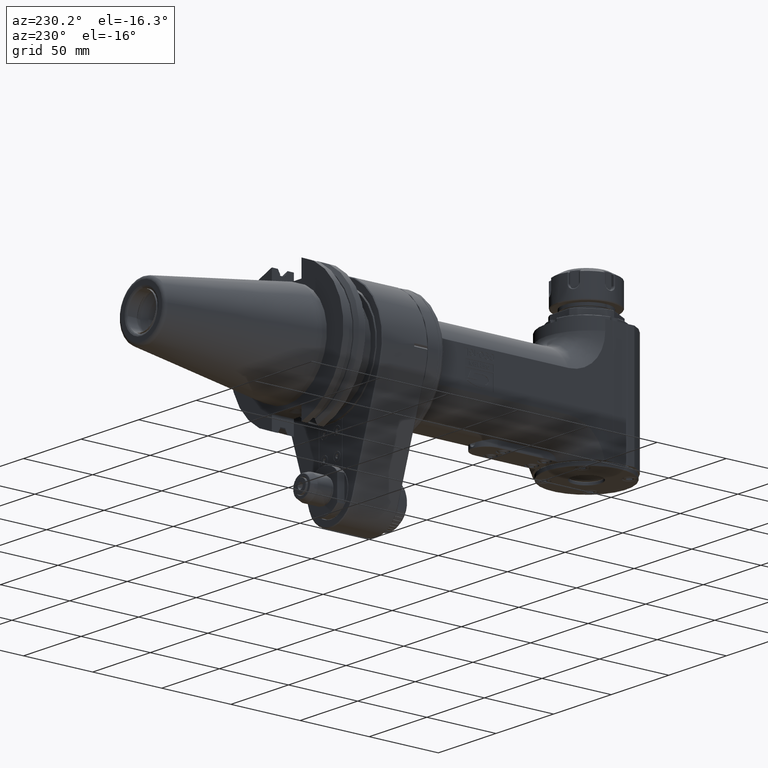
[diagram: clean part render]
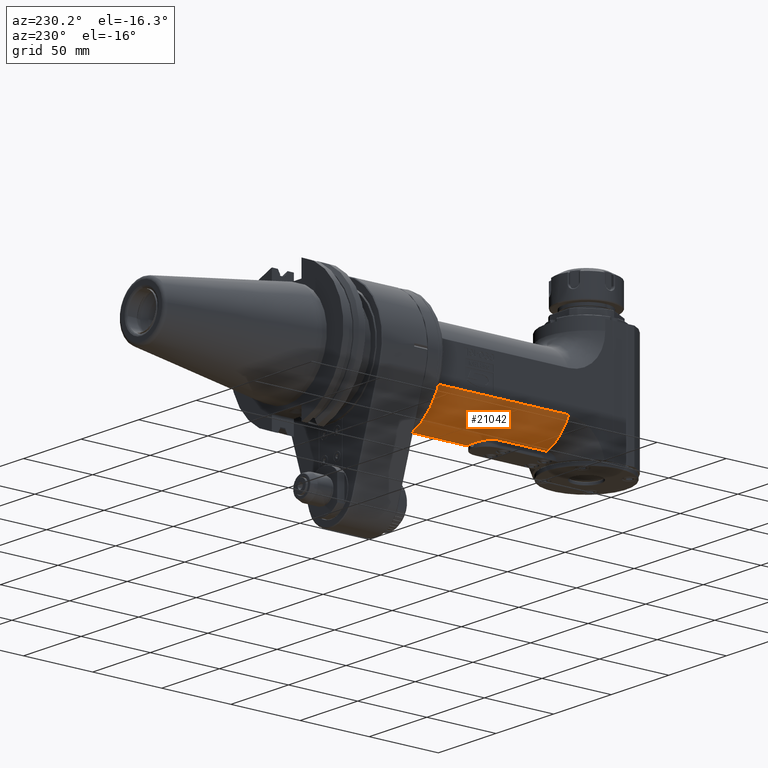
[diagram: same view with one face highlighted and labeled with its STEP entity id]
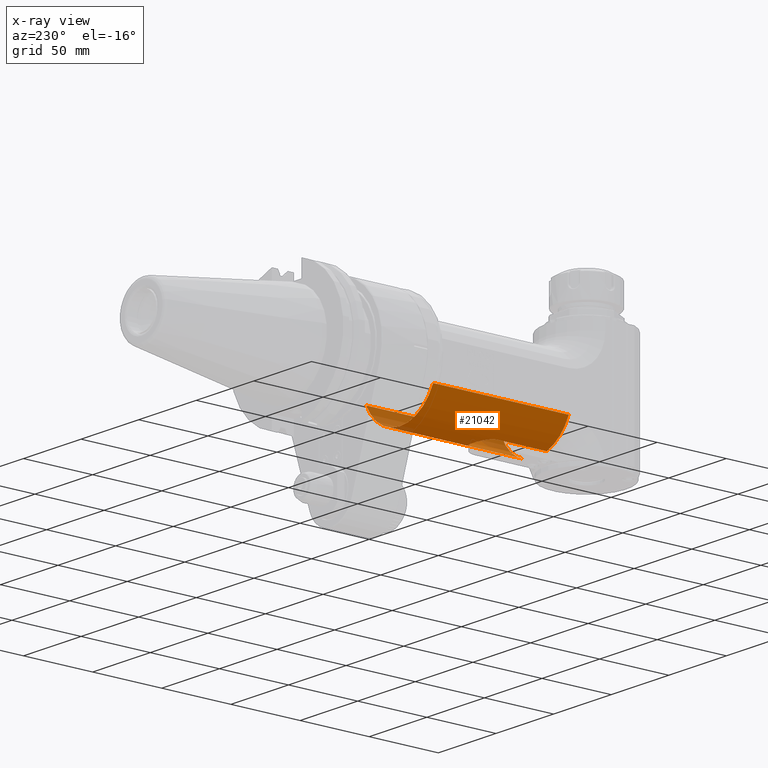
[diagram: x-ray of the same camera — body ghosted, the highlighted face saturated]
A machine part, auxiliary view. The second image highlights one B-rep face of the part: STEP entity #21042.
The next image is the same camera in x-ray: the body ghosted, the highlighted face saturated — about 11% of this face is hidden behind the body in this view.
In plain terms, the highlighted cylindrical surface (partial cylindrical patch) has radius 32 mm, axis along (0, -1, -0).
Its self-contained STEP definition (entity closure, byte-faithful):
#1238=B_SPLINE_CURVE_WITH_KNOTS('',3,(#30257,#30258,#30259,#30260,#30261,
#30262,#30263,#30264,#30265,#30266,#30267,#30268,#30269,#30270,#30271,#30272,
#30273,#30274,#30275,#30276,#30277,#30278,#30279,#30280,#30281,#30282,#30283,
#30284,#30285,#30286,#30287,#30288,#30289,#30290,#30291,#30292,#30293),
 .UNSPECIFIED.,.F.,.F.,(4,3,3,3,3,3,3,3,3,3,3,3,4),(0.,0.08333333333333,
0.1666666666667,0.25,0.3333333333333,0.4166666666667,0.5,0.5833333333333,
0.6666666666667,0.75,0.8333333333333,0.9166666666667,1.),.UNSPECIFIED.);
#1239=B_SPLINE_CURVE_WITH_KNOTS('',3,(#30295,#30296,#30297,#30298,#30299,
#30300,#30301,#30302,#30303,#30304,#30305,#30306,#30307,#30308,#30309,#30310,
#30311,#30312,#30313,#30314,#30315,#30316,#30317,#30318,#30319,#30320,#30321,
#30322,#30323,#30324,#30325,#30326,#30327,#30328,#30329,#30330,#30331,#30332,
#30333,#30334,#30335,#30336,#30337,#30338,#30339,#30340,#30341,#30342,#30343,
#30344,#30345,#30346,#30347,#30348,#30349,#30350,#30351,#30352,#30353,#30354,
#30355,#30356,#30357,#30358,#30359,#30360,#30361,#30362,#30363,#30364,#30365,
#30366,#30367,#30368,#30369,#30370,#30371,#30372,#30373,#30374,#30375,#30376,
#30377,#30378,#30379,#30380,#30381,#30382,#30383,#30384,#30385,#30386,#30387,
#30388,#30389,#30390,#30391,#30392,#30393,#30394,#30395,#30396,#30397,#30398,
#30399,#30400),.UNSPECIFIED.,.F.,.F.,(4,3,3,3,3,3,3,3,3,3,3,3,3,3,3,3,3,
3,3,3,3,3,3,3,3,3,3,3,3,3,3,3,3,3,3,4),(0.,0.02857142857143,0.05714285714286,
0.08571428571429,0.1142857142857,0.1428571428571,0.1714285714286,0.2,0.2285714285714,
0.2571428571429,0.2857142857143,0.3142857142857,0.3428571428571,0.3714285714286,
0.4,0.4285714285714,0.4571428571429,0.4857142857143,0.5142857142857,0.5428571428571,
0.5714285714286,0.6,0.6285714285714,0.6571428571429,0.6857142857143,0.7142857142857,
0.7428571428571,0.7714285714286,0.8,0.8285714285714,0.8571428571429,0.8857142857143,
0.9142857142857,0.9428571428571,0.9714285714286,1.),.UNSPECIFIED.);
#1240=B_SPLINE_CURVE_WITH_KNOTS('',3,(#30415,#30416,#30417,#30418,#30419,
#30420,#30421,#30422,#30423,#30424,#30425,#30426,#30427,#30428,#30429,#30430,
#30431,#30432,#30433,#30434,#30435,#30436,#30437,#30438,#30439,#30440,#30441,
#30442,#30443,#30444,#30445,#30446,#30447,#30448,#30449,#30450,#30451,#30452,
#30453,#30454,#30455,#30456,#30457,#30458,#30459,#30460,#30461,#30462,#30463,
#30464,#30465,#30466,#30467,#30468,#30469,#30470,#30471,#30472,#30473,#30474,
#30475,#30476,#30477,#30478,#30479,#30480,#30481,#30482,#30483,#30484,#30485,
#30486,#30487,#30488,#30489,#30490,#30491,#30492,#30493,#30494,#30495,#30496,
#30497,#30498,#30499,#30500,#30501,#30502,#30503,#30504,#30505,#30506,#30507,
#30508,#30509,#30510,#30511,#30512,#30513,#30514,#30515,#30516,#30517,#30518,
#30519,#30520),.UNSPECIFIED.,.F.,.F.,(4,3,3,3,3,3,3,3,3,3,3,3,3,3,3,3,3,
3,3,3,3,3,3,3,3,3,3,3,3,3,3,3,3,3,3,4),(0.,0.02857142857143,0.05714285714286,
0.08571428571429,0.1142857142857,0.1428571428571,0.1714285714286,0.2,0.2285714285714,
0.2571428571429,0.2857142857143,0.3142857142857,0.3428571428571,0.3714285714286,
0.4,0.4285714285714,0.4571428571429,0.4857142857143,0.5142857142857,0.5428571428571,
0.5714285714286,0.6,0.6285714285714,0.6571428571429,0.6857142857143,0.7142857142857,
0.7428571428571,0.7714285714286,0.8,0.8285714285714,0.8571428571429,0.8857142857143,
0.9142857142857,0.9428571428571,0.9714285714286,1.),.UNSPECIFIED.);
#1469=FACE_OUTER_BOUND('',#2683,.T.);
#2683=EDGE_LOOP('',(#14415,#14416,#14417,#14418,#14419,#14420,#14421,#14422,
#14423,#14424));
#4112=CIRCLE('',#22317,1.25984251968504);
#4113=CIRCLE('',#22318,1.25984251968504);
#4114=CIRCLE('',#22319,1.25984251968504);
#4831=LINE('',#30402,#6954);
#4832=LINE('',#30406,#6955);
#4833=LINE('',#30410,#6956);
#4834=LINE('',#30414,#6957);
#6954=VECTOR('',#24261,1.39763779527559);
#6955=VECTOR('',#24264,3.85826771653543);
#6956=VECTOR('',#24267,3.85826771653543);
#6957=VECTOR('',#24270,1.39763779527559);
#9079=VERTEX_POINT('',#30255);
#9080=VERTEX_POINT('',#30256);
#9081=VERTEX_POINT('',#30294);
#9082=VERTEX_POINT('',#30401);
#9083=VERTEX_POINT('',#30403);
#9084=VERTEX_POINT('',#30405);
#9085=VERTEX_POINT('',#30407);
#9086=VERTEX_POINT('',#30409);
#9087=VERTEX_POINT('',#30411);
#9088=VERTEX_POINT('',#30413);
#11197=EDGE_CURVE('',#9079,#9080,#1238,.T.);
#11198=EDGE_CURVE('',#9081,#9080,#1239,.T.);
#11199=EDGE_CURVE('',#9081,#9082,#4831,.T.);
#11200=EDGE_CURVE('',#9082,#9083,#4112,.T.);
#11201=EDGE_CURVE('',#9084,#9083,#4832,.T.);
#11202=EDGE_CURVE('',#9085,#9084,#4113,.T.);
#11203=EDGE_CURVE('',#9085,#9086,#4833,.T.);
#11204=EDGE_CURVE('',#9086,#9087,#4114,.T.);
#11205=EDGE_CURVE('',#9088,#9087,#4834,.T.);
#11206=EDGE_CURVE('',#9079,#9088,#1240,.T.);
#14415=ORIENTED_EDGE('',*,*,#11197,.T.);
#14416=ORIENTED_EDGE('',*,*,#11198,.F.);
#14417=ORIENTED_EDGE('',*,*,#11199,.T.);
#14418=ORIENTED_EDGE('',*,*,#11200,.T.);
#14419=ORIENTED_EDGE('',*,*,#11201,.F.);
#14420=ORIENTED_EDGE('',*,*,#11202,.F.);
#14421=ORIENTED_EDGE('',*,*,#11203,.T.);
#14422=ORIENTED_EDGE('',*,*,#11204,.T.);
#14423=ORIENTED_EDGE('',*,*,#11205,.F.);
#14424=ORIENTED_EDGE('',*,*,#11206,.F.);
#20842=CYLINDRICAL_SURFACE('',#22316,1.25984251968504);
#21042=ADVANCED_FACE('',(#1469),#20842,.T.);
#22316=AXIS2_PLACEMENT_3D('',#30254,#24259,#24260);
#22317=AXIS2_PLACEMENT_3D('',#30404,#24262,#24263);
#22318=AXIS2_PLACEMENT_3D('',#30408,#24265,#24266);
#22319=AXIS2_PLACEMENT_3D('',#30412,#24268,#24269);
#24259=DIRECTION('center_axis',(0.,-1.,0.));
#24260=DIRECTION('ref_axis',(-1.,0.,0.));
#24261=DIRECTION('',(-1.040794993226E-14,-1.,0.));
#24262=DIRECTION('center_axis',(0.,1.,0.));
#24263=DIRECTION('ref_axis',(-0.31249999999999,0.,-0.94991775959817));
#24264=DIRECTION('',(0.,-1.,0.));
#24265=DIRECTION('center_axis',(0.,1.,0.));
#24266=DIRECTION('ref_axis',(0.906250000000018,0.,-0.422742164327108));
#24267=DIRECTION('',(0.,-1.,0.));
#24268=DIRECTION('center_axis',(0.,1.,0.));
#24269=DIRECTION('ref_axis',(0.906250000000018,0.,-0.422742164327108));
#24270=DIRECTION('',(0.,-1.,0.));
#30254=CARTESIAN_POINT('Origin',(0.,0.348425196850394,0.));
#30255=CARTESIAN_POINT('',(0.0890389197391338,-3.73067305784803,-1.25669218394055));
#30256=CARTESIAN_POINT('',(-0.0890389364111024,-3.7306730617189,-1.25669218276299));
#30257=CARTESIAN_POINT('Ctrl Pts',(0.08903891973913,-3.73067305784805,-1.25669218394055));
#30258=CARTESIAN_POINT('Ctrl Pts',(0.0841543003684061,-3.72953897430503,
-1.25703826807913));
#30259=CARTESIAN_POINT('Ctrl Pts',(0.079256026067254,-3.72850003009683,
-1.25735670263071));
#30260=CARTESIAN_POINT('Ctrl Pts',(0.0743436712246865,-3.72755542152756,
-1.25764708601227));
#30261=CARTESIAN_POINT('Ctrl Pts',(0.0694313163821166,-3.72661081295828,
-1.25793746939383));
#30262=CARTESIAN_POINT('Ctrl Pts',(0.0645048728801653,-3.72576058525627,
-1.25819980160538));
#30263=CARTESIAN_POINT('Ctrl Pts',(0.0595673854625266,-3.72500483729988,
-1.25843351075669));
#30264=CARTESIAN_POINT('Ctrl Pts',(0.054629898044892,-3.7242490893435,-1.25866721990801));
#30265=CARTESIAN_POINT('Ctrl Pts',(0.049681360408879,-3.72358785106716,
-1.25887230599908));
#30266=CARTESIAN_POINT('Ctrl Pts',(0.0447272106238799,-3.72302135677938,
-1.2590483116372));
#30267=CARTESIAN_POINT('Ctrl Pts',(0.0397730608388807,-3.7224548624916,
-1.25922431727533));
#30268=CARTESIAN_POINT('Ctrl Pts',(0.0348133102987204,-3.72198302142192,
-1.2593712424605));
#30269=CARTESIAN_POINT('Ctrl Pts',(0.0298461815604096,-3.72160538013817,
-1.25948893597881));
#30270=CARTESIAN_POINT('Ctrl Pts',(0.0248790528220928,-3.72122773885442,
-1.25960662949711));
#30271=CARTESIAN_POINT('Ctrl Pts',(0.0199045385030821,-3.72094439971695,
-1.25969509134856));
#30272=CARTESIAN_POINT('Ctrl Pts',(0.0149289310850881,-3.72075559145498,
-1.2597540638645));
#30273=CARTESIAN_POINT('Ctrl Pts',(0.00995332366710012,-3.72056678319301,
-1.25981303638045));
#30274=CARTESIAN_POINT('Ctrl Pts',(0.00497662402023859,-3.72047244054078,
-1.25984251956089));
#30275=CARTESIAN_POINT('Ctrl Pts',(-3.19684991053016E-8,-3.72047244094488,
-1.25984251968497));
#30276=CARTESIAN_POINT('Ctrl Pts',(-0.0049766879572368,-3.72047244134899,
-1.25984251980906));
#30277=CARTESIAN_POINT('Ctrl Pts',(-0.00995329823256593,-3.720566782842,
-1.25981303687677));
#30278=CARTESIAN_POINT('Ctrl Pts',(-0.0149288825944015,-3.72075558961491,
-1.25975406443898));
#30279=CARTESIAN_POINT('Ctrl Pts',(-0.019904466956243,-3.72094439638783,
-1.25969509200118));
#30280=CARTESIAN_POINT('Ctrl Pts',(-0.0248790243744657,-3.7212277366853,
-1.25960663005787));
#30281=CARTESIAN_POINT('Ctrl Pts',(-0.0298461820552424,-3.72160538017579,
-1.25948893596686));
#30282=CARTESIAN_POINT('Ctrl Pts',(-0.0348133397360132,-3.72198302366628,
-1.25937124187585));
#30283=CARTESIAN_POINT('Ctrl Pts',(-0.0397731051890815,-3.72245486721744,
-1.25922431563714));
#30284=CARTESIAN_POINT('Ctrl Pts',(-0.0447272375499251,-3.72302135985831,
-1.25904831068058));
#30285=CARTESIAN_POINT('Ctrl Pts',(-0.0496813699107687,-3.72358785249917,
-1.25887230572402));
#30286=CARTESIAN_POINT('Ctrl Pts',(-0.0546298579030249,-3.72424908348409,
-1.25866722204961));
#30287=CARTESIAN_POINT('Ctrl Pts',(-0.0595673635260499,-3.72500483394222,
-1.25843351179508));
#30288=CARTESIAN_POINT('Ctrl Pts',(-0.0645048691490808,-3.72576058440034,
-1.25819980154055));
#30289=CARTESIAN_POINT('Ctrl Pts',(-0.0694313982641935,-3.72661082735129,
-1.25793746470591));
#30290=CARTESIAN_POINT('Ctrl Pts',(-0.0743437738604447,-3.72755544126365,
-1.25764707994508));
#30291=CARTESIAN_POINT('Ctrl Pts',(-0.0792561494566901,-3.72850005517601,
-1.25735669518425));
#30292=CARTESIAN_POINT('Ctrl Pts',(-0.0841543801221673,-3.72953899259802,
-1.25703826249724));
#30293=CARTESIAN_POINT('Ctrl Pts',(-0.0890389364111118,-3.73067306171886,
-1.25669218276299));
#30294=CARTESIAN_POINT('',(-0.393700787401575,-4.11417322834646,-1.19674678374567));
#30295=CARTESIAN_POINT('Ctrl Pts',(-0.393700787401575,-4.11417322834646,
-1.19674678374567));
#30296=CARTESIAN_POINT('Ctrl Pts',(-0.393700787401575,-4.1092659172559,
-1.19674678374567));
#30297=CARTESIAN_POINT('Ctrl Pts',(-0.393609094887724,-4.10436088940109,
-1.19677694741968));
#30298=CARTESIAN_POINT('Ctrl Pts',(-0.39342561340999,-4.09945600328215,
-1.19683727428556));
#30299=CARTESIAN_POINT('Ctrl Pts',(-0.393242131932255,-4.09455111716321,
-1.19689760115144));
#30300=CARTESIAN_POINT('Ctrl Pts',(-0.392966754838512,-4.08964637497543,
-1.19698809120919));
#30301=CARTESIAN_POINT('Ctrl Pts',(-0.392599640080333,-4.08474819462663,
-1.19710847337054));
#30302=CARTESIAN_POINT('Ctrl Pts',(-0.392232525322154,-4.07985001427783,
-1.19722885553189));
#30303=CARTESIAN_POINT('Ctrl Pts',(-0.391773778952252,-4.0749583881274,
-1.19737912979685));
#30304=CARTESIAN_POINT('Ctrl Pts',(-0.391222859864438,-4.0700712565072,
-1.19755912101496));
#30305=CARTESIAN_POINT('Ctrl Pts',(-0.390671940776623,-4.065184124887,-1.19773911223307));
#30306=CARTESIAN_POINT('Ctrl Pts',(-0.390028745961286,-4.06030149986836,
-1.19794882040433));
#30307=CARTESIAN_POINT('Ctrl Pts',(-0.389293587001397,-4.05542960639304,
-1.19818766373465));
#30308=CARTESIAN_POINT('Ctrl Pts',(-0.388558428041509,-4.05055771291773,
-1.19842650706496));
#30309=CARTESIAN_POINT('Ctrl Pts',(-0.387731383093456,-4.04569653805181,
-1.19869448555433));
#30310=CARTESIAN_POINT('Ctrl Pts',(-0.386811888736671,-4.04084606603542,
-1.19899113305249));
#30311=CARTESIAN_POINT('Ctrl Pts',(-0.385892394379883,-4.03599559401902,
-1.19928778055066));
#30312=CARTESIAN_POINT('Ctrl Pts',(-0.384880412328049,-4.03115583378244,
-1.19961309705761));
#30313=CARTESIAN_POINT('Ctrl Pts',(-0.383775798584635,-4.02632992227624,
-1.19996637904016));
#30314=CARTESIAN_POINT('Ctrl Pts',(-0.382671184841226,-4.02150401077007,
-1.2003196610227));
#30315=CARTESIAN_POINT('Ctrl Pts',(-0.381473919187616,-4.01669195086996,
-1.20070090848084));
#30316=CARTESIAN_POINT('Ctrl Pts',(-0.380184402939782,-4.01189845256112,
-1.2011090683893));
#30317=CARTESIAN_POINT('Ctrl Pts',(-0.378894886691948,-4.00710495425228,
-1.20151722829777));
#30318=CARTESIAN_POINT('Ctrl Pts',(-0.377513182591267,-4.0023300019717,
-1.20195230065656));
#30319=CARTESIAN_POINT('Ctrl Pts',(-0.376038290891273,-3.99757342652763,
-1.20241356370827));
#30320=CARTESIAN_POINT('Ctrl Pts',(-0.374563399191273,-3.99281685108353,
-1.20287482675997));
#30321=CARTESIAN_POINT('Ctrl Pts',(-0.372995226811501,-3.98807868086155,
-1.20336228050459));
#30322=CARTESIAN_POINT('Ctrl Pts',(-0.371335168635945,-3.98336610875913,
-1.20387431525906));
#30323=CARTESIAN_POINT('Ctrl Pts',(-0.369675110460395,-3.97865353665672,
-1.20438635001352));
#30324=CARTESIAN_POINT('Ctrl Pts',(-0.367923257161262,-3.97396653002045,
-1.20492296577782));
#30325=CARTESIAN_POINT('Ctrl Pts',(-0.366078603016485,-3.96930512828948,
-1.20548315244134));
#30326=CARTESIAN_POINT('Ctrl Pts',(-0.364233948871708,-3.9646437265585,
-1.20604333910486));
#30327=CARTESIAN_POINT('Ctrl Pts',(-0.362296436038222,-3.960007954617,-1.20662709666759));
#30328=CARTESIAN_POINT('Ctrl Pts',(-0.360266816255635,-3.95540254117263,
-1.20723278430945));
#30329=CARTESIAN_POINT('Ctrl Pts',(-0.358237196473047,-3.95079712772826,
-1.20783847195131));
#30330=CARTESIAN_POINT('Ctrl Pts',(-0.356115443687609,-3.94622208205282,
-1.20846608967231));
#30331=CARTESIAN_POINT('Ctrl Pts',(-0.353903606142349,-3.94168396039027,
-1.20911348183924));
#30332=CARTESIAN_POINT('Ctrl Pts',(-0.351691768597082,-3.93714583872771,
-1.20976087400617));
#30333=CARTESIAN_POINT('Ctrl Pts',(-0.349389913806013,-3.93264460923863,
-1.21042804061903));
#30334=CARTESIAN_POINT('Ctrl Pts',(-0.346997709490645,-3.92818156291796,
-1.2111134397796));
#30335=CARTESIAN_POINT('Ctrl Pts',(-0.344605505175284,-3.9237185165973,
-1.21179883894016));
#30336=CARTESIAN_POINT('Ctrl Pts',(-0.34212288788464,-3.91929368734625,
-1.21250247064843));
#30337=CARTESIAN_POINT('Ctrl Pts',(-0.339552319134587,-3.91491326605864,
-1.21322190755722));
#30338=CARTESIAN_POINT('Ctrl Pts',(-0.336981750384535,-3.91053284477102,
-1.21394134446601));
#30339=CARTESIAN_POINT('Ctrl Pts',(-0.334323280448185,-3.90619680199756,
-1.21467658657533));
#30340=CARTESIAN_POINT('Ctrl Pts',(-0.331577303265876,-3.90190735271038,
-1.21542571404652));
#30341=CARTESIAN_POINT('Ctrl Pts',(-0.328831326083558,-3.89761790342319,
-1.21617484151772));
#30342=CARTESIAN_POINT('Ctrl Pts',(-0.325997778743662,-3.89337508793143,
-1.21693785435079));
#30343=CARTESIAN_POINT('Ctrl Pts',(-0.323080461007654,-3.88918583822047,
-1.21771186662592));
#30344=CARTESIAN_POINT('Ctrl Pts',(-0.320163143271656,-3.88499658850952,
-1.21848587890105));
#30345=CARTESIAN_POINT('Ctrl Pts',(-0.3171621109474,-3.88086086502606,-1.21927089061824));
#30346=CARTESIAN_POINT('Ctrl Pts',(-0.314078461852898,-3.87678108483548,
-1.22006470902421));
#30347=CARTESIAN_POINT('Ctrl Pts',(-0.310994812758396,-3.8727013046449,
-1.22085852743018));
#30348=CARTESIAN_POINT('Ctrl Pts',(-0.307828511228069,-3.86867749609132,
-1.22166115252493));
#30349=CARTESIAN_POINT('Ctrl Pts',(-0.304582963016852,-3.86471475757327,
-1.22246979228379));
#30350=CARTESIAN_POINT('Ctrl Pts',(-0.301337414805636,-3.86075201905523,
-1.22327843204265));
#30351=CARTESIAN_POINT('Ctrl Pts',(-0.298012621104632,-3.85685034791597,
-1.22409308646561));
#30352=CARTESIAN_POINT('Ctrl Pts',(-0.294612241482257,-3.85301439321079,
-1.22491093618077));
#30353=CARTESIAN_POINT('Ctrl Pts',(-0.29121186185987,-3.84917843850559,
-1.22572878589593));
#30354=CARTESIAN_POINT('Ctrl Pts',(-0.287735921086203,-3.84540817970063,
-1.22654983090328));
#30355=CARTESIAN_POINT('Ctrl Pts',(-0.284186650158965,-3.84170624342526,
-1.22737163169023));
#30356=CARTESIAN_POINT('Ctrl Pts',(-0.28063737923174,-3.83800430714991,
-1.22819343247717));
#30357=CARTESIAN_POINT('Ctrl Pts',(-0.27701473684976,-3.8343707321036,-1.2290159890437));
#30358=CARTESIAN_POINT('Ctrl Pts',(-0.273324264064035,-3.83081099255193,
-1.22983617652113));
#30359=CARTESIAN_POINT('Ctrl Pts',(-0.269633791278309,-3.82725125300026,
-1.23065636399856));
#30360=CARTESIAN_POINT('Ctrl Pts',(-0.265875535562334,-3.82376529989593,
-1.23147418238687));
#30361=CARTESIAN_POINT('Ctrl Pts',(-0.262051503656119,-3.82035471389887,
-1.23228737875446));
#30362=CARTESIAN_POINT('Ctrl Pts',(-0.258227471749891,-3.8169441279018,
-1.23310057512205));
#30363=CARTESIAN_POINT('Ctrl Pts',(-0.254337622904877,-3.81360895525866,
-1.2339091494689));
#30364=CARTESIAN_POINT('Ctrl Pts',(-0.250387695348727,-3.81035368977368,
-1.2347101588729));
#30365=CARTESIAN_POINT('Ctrl Pts',(-0.246437767792589,-3.80709842428871,
-1.2355111682769));
#30366=CARTESIAN_POINT('Ctrl Pts',(-0.242427790872275,-3.80392302913152,
-1.23630461273806));
#30367=CARTESIAN_POINT('Ctrl Pts',(-0.238360947063378,-3.80082937741641,
-1.23708820757507));
#30368=CARTESIAN_POINT('Ctrl Pts',(-0.23429410325448,-3.79773572570131,
-1.23787180241207));
#30369=CARTESIAN_POINT('Ctrl Pts',(-0.230170383075058,-3.79472383152682,
-1.23864554762493));
#30370=CARTESIAN_POINT('Ctrl Pts',(-0.225994120189476,-3.79179617016706,
-1.23940704857054));
#30371=CARTESIAN_POINT('Ctrl Pts',(-0.221817857303894,-3.78886850880729,
-1.24016854951614));
#30372=CARTESIAN_POINT('Ctrl Pts',(-0.217589045236715,-3.7860250878256,
-1.24091780619449));
#30373=CARTESIAN_POINT('Ctrl Pts',(-0.213312839947959,-3.78326849535831,
-1.2416524500519));
#30374=CARTESIAN_POINT('Ctrl Pts',(-0.209036634659189,-3.78051190289101,
-1.24238709390932));
#30375=CARTESIAN_POINT('Ctrl Pts',(-0.204713058784035,-3.77784210495278,
-1.2431071249458));
#30376=CARTESIAN_POINT('Ctrl Pts',(-0.200344687481973,-3.77525979367859,
-1.24381074951306));
#30377=CARTESIAN_POINT('Ctrl Pts',(-0.195976316179926,-3.77267748240441,
-1.24451437408032));
#30378=CARTESIAN_POINT('Ctrl Pts',(-0.191563125984915,-3.77018269730947,
-1.24520159217835));
#30379=CARTESIAN_POINT('Ctrl Pts',(-0.187110844736667,-3.76777772926693,
-1.24587026057625));
#30380=CARTESIAN_POINT('Ctrl Pts',(-0.182658563488419,-3.7653727612244,
-1.24653892897415));
#30381=CARTESIAN_POINT('Ctrl Pts',(-0.178167212011424,-3.76305757088677,
-1.24718904767191));
#30382=CARTESIAN_POINT('Ctrl Pts',(-0.173639547986341,-3.76083257490318,
-1.24781909016561));
#30383=CARTESIAN_POINT('Ctrl Pts',(-0.169111883961242,-3.75860757891959,
-1.24844913265932));
#30384=CARTESIAN_POINT('Ctrl Pts',(-0.16454789872235,-3.75647279636109,
-1.24905909894895));
#30385=CARTESIAN_POINT('Ctrl Pts',(-0.159951818087508,-3.75442925565043,
-1.24964738638425));
#30386=CARTESIAN_POINT('Ctrl Pts',(-0.155355737452681,-3.75238571493977,
-1.25023567381956));
#30387=CARTESIAN_POINT('Ctrl Pts',(-0.15072756285052,-3.75043341130443,
-1.25080228240053));
#30388=CARTESIAN_POINT('Ctrl Pts',(-0.146071207216077,-3.74857301989047,
-1.25134582623222));
#30389=CARTESIAN_POINT('Ctrl Pts',(-0.141414851581635,-3.74671262847652,
-1.25188937006391));
#30390=CARTESIAN_POINT('Ctrl Pts',(-0.136730322044838,-3.74494413252081,
-1.25240984914633));
#30391=CARTESIAN_POINT('Ctrl Pts',(-0.132020181453691,-3.74326760465014,
-1.2529061601315));
#30392=CARTESIAN_POINT('Ctrl Pts',(-0.127310040862543,-3.74159107677947,
-1.25340247111667));
#30393=CARTESIAN_POINT('Ctrl Pts',(-0.122574281576407,-3.74000653873673,
-1.25387461400459));
#30394=CARTESIAN_POINT('Ctrl Pts',(-0.117817165402102,-3.7385145727331,
-1.25432144601883));
#30395=CARTESIAN_POINT('Ctrl Pts',(-0.113060049227781,-3.73702260672946,
-1.25476827803307));
#30396=CARTESIAN_POINT('Ctrl Pts',(-0.1082815804163,-3.73562319686963,-1.25518979917362));
#30397=CARTESIAN_POINT('Ctrl Pts',(-0.103484782452608,-3.734316400316,-1.25558515211319));
#30398=CARTESIAN_POINT('Ctrl Pts',(-0.098687984488933,-3.73300960376238,
-1.25598050505276));
#30399=CARTESIAN_POINT('Ctrl Pts',(-0.0938728692669261,-3.73179537737246,
-1.25634968979134));
#30400=CARTESIAN_POINT('Ctrl Pts',(-0.089038936411112,-3.73067306171886,
-1.25669218276299));
#30401=CARTESIAN_POINT('',(-0.393700787401575,-5.51181102362205,-1.19674678374567));
#30402=CARTESIAN_POINT('',(-0.393700787401575,-4.11417322834646,-1.19674678374567));
#30403=CARTESIAN_POINT('',(-1.14173228346457,-5.51181102362205,-0.532588553483071));
#30404=CARTESIAN_POINT('Origin',(0.,-5.51181102362205,0.));
#30405=CARTESIAN_POINT('',(-1.14173228346457,-1.65354330708661,-0.532588553483071));
#30406=CARTESIAN_POINT('',(-1.14173228346457,-1.65354330708661,-0.532588553483071));
#30407=CARTESIAN_POINT('',(1.14173228346457,-1.65354330708661,-0.532588553483071));
#30408=CARTESIAN_POINT('Origin',(0.,-1.65354330708661,0.));
#30409=CARTESIAN_POINT('',(1.14173228346457,-5.51181102362205,-0.532588553483071));
#30410=CARTESIAN_POINT('',(1.14173228346457,-1.65354330708661,-0.532588553483071));
#30411=CARTESIAN_POINT('',(0.393700787401575,-5.51181102362205,-1.19674678374567));
#30412=CARTESIAN_POINT('Origin',(0.,-5.51181102362205,0.));
#30413=CARTESIAN_POINT('',(0.393700787401575,-4.11417322834646,-1.19674678374567));
#30414=CARTESIAN_POINT('',(0.393700787401575,-4.11417322834646,-1.19674678374567));
#30415=CARTESIAN_POINT('Ctrl Pts',(0.08903891973913,-3.73067305784805,-1.25669218394055));
#30416=CARTESIAN_POINT('Ctrl Pts',(0.093872820004163,-3.73179536571343,
-1.25634969334252));
#30417=CARTESIAN_POINT('Ctrl Pts',(0.0986879508157232,-3.73300959530295,
-1.2559805071876));
#30418=CARTESIAN_POINT('Ctrl Pts',(0.103484729803434,-3.73431638597274,
-1.25558515645259));
#30419=CARTESIAN_POINT('Ctrl Pts',(0.108281508791144,-3.73562317664253,
-1.25518980571759));
#30420=CARTESIAN_POINT('Ctrl Pts',(0.113059925114504,-3.73702256735051,
-1.25476829040249));
#30421=CARTESIAN_POINT('Ctrl Pts',(0.117817198007699,-3.73851458295914,
-1.25432144295623));
#30422=CARTESIAN_POINT('Ctrl Pts',(0.122574470900895,-3.74000659856777,
-1.25387459550997));
#30423=CARTESIAN_POINT('Ctrl Pts',(0.127310593935207,-3.7415912617218,-1.25340241593255));
#30424=CARTESIAN_POINT('Ctrl Pts',(0.132021014470837,-3.74326790115539,
-1.25290607235525));
#30425=CARTESIAN_POINT('Ctrl Pts',(0.136731435006463,-3.74494454058898,
-1.25240972877795));
#30426=CARTESIAN_POINT('Ctrl Pts',(0.141416161719982,-3.74671313237904,
-1.25188922120079));
#30427=CARTESIAN_POINT('Ctrl Pts',(0.146072530931474,-3.74857354876797,
-1.25134567171253));
#30428=CARTESIAN_POINT('Ctrl Pts',(0.150728900142964,-3.75043396515689,
-1.25080212222428));
#30429=CARTESIAN_POINT('Ctrl Pts',(0.155356907786166,-3.75238621440947,
-1.25023553082494));
#30430=CARTESIAN_POINT('Ctrl Pts',(0.159953183564675,-3.7544298627813,-1.24964721160558));
#30431=CARTESIAN_POINT('Ctrl Pts',(0.164549459343201,-3.75647351115314,
-1.24905889238622));
#30432=CARTESIAN_POINT('Ctrl Pts',(0.16911399320421,-3.75860858300195,-1.24844884534685));
#30433=CARTESIAN_POINT('Ctrl Pts',(0.173641588091139,-3.7608335774639,-1.24781880627408));
#30434=CARTESIAN_POINT('Ctrl Pts',(0.178169182978054,-3.76305857192584,
-1.24718876720131));
#30435=CARTESIAN_POINT('Ctrl Pts',(0.182659857257421,-3.76537345124652,
-1.24653873609514));
#30436=CARTESIAN_POINT('Ctrl Pts',(0.187111376498866,-3.76777801650697,
-1.24587018071345));
#30437=CARTESIAN_POINT('Ctrl Pts',(0.191562895740311,-3.77018258176743,
-1.24520162533176));
#30438=CARTESIAN_POINT('Ctrl Pts',(0.195975241571279,-3.77267686596165,
-1.24451454567454));
#30439=CARTESIAN_POINT('Ctrl Pts',(0.200343606773437,-3.77525915483279,
-1.24381092358576));
#30440=CARTESIAN_POINT('Ctrl Pts',(0.204711971975611,-3.77784144370392,
-1.24310730149698));
#30441=CARTESIAN_POINT('Ctrl Pts',(0.209036360069615,-3.78051173269629,
-1.24238713697664));
#30442=CARTESIAN_POINT('Ctrl Pts',(0.213312467384909,-3.78326825519135,
-1.24165251405728));
#30443=CARTESIAN_POINT('Ctrl Pts',(0.217588574700188,-3.7860247776864,-1.24091789113792));
#30444=CARTESIAN_POINT('Ctrl Pts',(0.221816405371185,-3.78886752620265,
-1.24016880981955));
#30445=CARTESIAN_POINT('Ctrl Pts',(0.225992296727469,-3.79179489188375,
-1.23940738106017));
#30446=CARTESIAN_POINT('Ctrl Pts',(0.230168188083754,-3.79472225756485,
-1.23864595230079));
#30447=CARTESIAN_POINT('Ctrl Pts',(0.234292126884798,-3.79773426010009,
-1.23787217610039));
#30448=CARTESIAN_POINT('Ctrl Pts',(0.238359101442803,-3.80082797345978,
-1.23708856318616));
#30449=CARTESIAN_POINT('Ctrl Pts',(0.242426076000809,-3.80392168681946,
-1.23630495027192));
#30450=CARTESIAN_POINT('Ctrl Pts',(0.246436103142369,-3.80709708807855,
-1.23551150064383));
#30451=CARTESIAN_POINT('Ctrl Pts',(0.250386061184047,-3.81035234301209,
-1.23471049026523));
#30452=CARTESIAN_POINT('Ctrl Pts',(0.254336019225738,-3.81360759794564,
-1.23390947988662));
#30453=CARTESIAN_POINT('Ctrl Pts',(0.258225878045707,-3.81694274395531,
-1.23310090875748));
#30454=CARTESIAN_POINT('Ctrl Pts',(0.26204990134322,-3.82035328483236,-1.23228771949265));
#30455=CARTESIAN_POINT('Ctrl Pts',(0.265873924640719,-3.82376382570939,
-1.23147453022782));
#30456=CARTESIAN_POINT('Ctrl Pts',(0.269632154080086,-3.82724971424335,
-1.2306567228273));
#30457=CARTESIAN_POINT('Ctrl Pts',(0.273322655735874,-3.83080944120683,
-1.22983653396201));
#30458=CARTESIAN_POINT('Ctrl Pts',(0.277013157391661,-3.83436916817032,
-1.22901634509672));
#30459=CARTESIAN_POINT('Ctrl Pts',(0.28063588160636,-3.83800278484721,-1.22819377476667));
#30460=CARTESIAN_POINT('Ctrl Pts',(0.284185189292275,-3.84170471973026,
-1.22737196993944));
#30461=CARTESIAN_POINT('Ctrl Pts',(0.287734496978201,-3.84540665461332,
-1.22655016511221));
#30462=CARTESIAN_POINT('Ctrl Pts',(0.291210430994996,-3.84917686760035,
-1.22572912578779));
#30463=CARTESIAN_POINT('Ctrl Pts',(0.294610780206547,-3.85301274476077,
-1.22491128764173));
#30464=CARTESIAN_POINT('Ctrl Pts',(0.298011129418086,-3.85684862192117,
-1.22409344949567));
#30465=CARTESIAN_POINT('Ctrl Pts',(0.301335870353039,-3.86075018256585,
-1.22327881252795));
#30466=CARTESIAN_POINT('Ctrl Pts',(0.30458144355289,-3.86471290235481,-1.22247017086286));
#30467=CARTESIAN_POINT('Ctrl Pts',(0.307827016752742,-3.86867562214377,
-1.22166152919777));
#30468=CARTESIAN_POINT('Ctrl Pts',(0.310993419514377,-3.87269950496072,
-1.2208588828353));
#30469=CARTESIAN_POINT('Ctrl Pts',(0.314077240993692,-3.87677946960287,
-1.22006502330656));
#30470=CARTESIAN_POINT('Ctrl Pts',(0.317161062473006,-3.88085943424501,
-1.21927116377782));
#30471=CARTESIAN_POINT('Ctrl Pts',(0.320162335740736,-3.88499545419866,
-1.21848609108281));
#30472=CARTESIAN_POINT('Ctrl Pts',(0.323079823946518,-3.8891849234075,-1.21771203564922));
#30473=CARTESIAN_POINT('Ctrl Pts',(0.325997312152309,-3.89337439261635,
-1.21693798021562));
#30474=CARTESIAN_POINT('Ctrl Pts',(0.328830956530527,-3.89761735312133,
-1.21617494204344));
#30475=CARTESIAN_POINT('Ctrl Pts',(0.33157669721974,-3.90190640601789,-1.21542587938012));
#30476=CARTESIAN_POINT('Ctrl Pts',(0.334322437908944,-3.90619545891443,
-1.2146768167168));
#30477=CARTESIAN_POINT('Ctrl Pts',(0.336980365260998,-3.91053054643002,
-1.21394172956234));
#30478=CARTESIAN_POINT('Ctrl Pts',(0.339551088348216,-3.91491116873108,
-1.21322225202454));
#30479=CARTESIAN_POINT('Ctrl Pts',(0.342121811435434,-3.91929179103214,
-1.21250277448675));
#30480=CARTESIAN_POINT('Ctrl Pts',(0.344605259149267,-3.92371798811633,
-1.21179890656562));
#30481=CARTESIAN_POINT('Ctrl Pts',(0.346998914648179,-3.92818381135289,
-1.21111309448747));
#30482=CARTESIAN_POINT('Ctrl Pts',(0.349392570147099,-3.93264963458947,
-1.21042728240932));
#30483=CARTESIAN_POINT('Ctrl Pts',(0.351696434133739,-3.93715508559178,
-1.20975952617415));
#30484=CARTESIAN_POINT('Ctrl Pts',(0.353908484874614,-3.94169397065332,
-1.20911205383963));
#30485=CARTESIAN_POINT('Ctrl Pts',(0.356120535615481,-3.94623285571484,
-1.20846458150512));
#30486=CARTESIAN_POINT('Ctrl Pts',(0.358240816485275,-3.95080515313644,
-1.20783739307126));
#30487=CARTESIAN_POINT('Ctrl Pts',(0.360269220539269,-3.95540799684835,
-1.20723206681181));
#30488=CARTESIAN_POINT('Ctrl Pts',(0.362297624593262,-3.96001084056026,
-1.20662674055236));
#30489=CARTESIAN_POINT('Ctrl Pts',(0.36423414508948,-3.96464423352304,-1.20604327646732));
#30490=CARTESIAN_POINT('Ctrl Pts',(0.36607848468856,-3.96930482927769,-1.20548318837493));
#30491=CARTESIAN_POINT('Ctrl Pts',(0.367922824287639,-3.97396542503233,
-1.20492310028255));
#30492=CARTESIAN_POINT('Ctrl Pts',(0.369674997520215,-3.97865321706329,
-1.20438638818281));
#30493=CARTESIAN_POINT('Ctrl Pts',(0.37133515975479,-3.98336608354731,-1.20387431799849));
#30494=CARTESIAN_POINT('Ctrl Pts',(0.37299532198937,-3.98807895003135,-1.20336224781417));
#30495=CARTESIAN_POINT('Ctrl Pts',(0.374563417153783,-3.99281691163005,
-1.20287481954527));
#30496=CARTESIAN_POINT('Ctrl Pts',(0.376038272745187,-3.99757336800591,
-1.2024135693834));
#30497=CARTESIAN_POINT('Ctrl Pts',(0.377513128336586,-4.00232982438174,
-1.20195231922152));
#30498=CARTESIAN_POINT('Ctrl Pts',(0.378894828606071,-4.00710474943537,
-1.20151724716667));
#30499=CARTESIAN_POINT('Ctrl Pts',(0.380184343503898,-4.0118982316213,-1.20110908720269));
#30500=CARTESIAN_POINT('Ctrl Pts',(0.381473858401724,-4.01669171380724,
-1.20070092723871));
#30501=CARTESIAN_POINT('Ctrl Pts',(0.382671126525753,-4.02150376853377,
-1.20031967936562));
#30502=CARTESIAN_POINT('Ctrl Pts',(0.383775748955038,-4.02632970545137,
-1.19996639491299));
#30503=CARTESIAN_POINT('Ctrl Pts',(0.384880371384326,-4.03115564236898,
-1.19961311046037));
#30504=CARTESIAN_POINT('Ctrl Pts',(0.385892367367055,-4.03599545876621,
-1.19928778942821));
#30505=CARTESIAN_POINT('Ctrl Pts',(0.386811868697426,-4.04084596032545,
-1.19899113951745));
#30506=CARTESIAN_POINT('Ctrl Pts',(0.387731370027794,-4.04569646188467,
-1.19869448960669));
#30507=CARTESIAN_POINT('Ctrl Pts',(0.388558416140876,-4.05055763947971,
-1.19842651081732));
#30508=CARTESIAN_POINT('Ctrl Pts',(0.389293577346299,-4.05542954240881,
-1.19818766687172));
#30509=CARTESIAN_POINT('Ctrl Pts',(0.390028738551722,-4.0603014453379,-1.19794882292612));
#30510=CARTESIAN_POINT('Ctrl Pts',(0.390671936073027,-4.06518408661221,
-1.19773911382428));
#30511=CARTESIAN_POINT('Ctrl Pts',(0.391222856398702,-4.07007122576312,
-1.19755912214711));
#30512=CARTESIAN_POINT('Ctrl Pts',(0.391773776724378,-4.07495836491404,
-1.19737913046995));
#30513=CARTESIAN_POINT('Ctrl Pts',(0.39223252317232,-4.07984998984658,-1.19722885621745));
#30514=CARTESIAN_POINT('Ctrl Pts',(0.392599638176307,-4.08474816922242,
-1.19710847399475));
#30515=CARTESIAN_POINT('Ctrl Pts',(0.392966753180294,-4.08964634859827,
-1.19698809177205));
#30516=CARTESIAN_POINT('Ctrl Pts',(0.393242130626741,-4.09455109005571,
-1.19689760157913));
#30517=CARTESIAN_POINT('Ctrl Pts',(0.393425612536623,-4.09945597993506,
-1.19683727457254));
#30518=CARTESIAN_POINT('Ctrl Pts',(0.393609094446505,-4.10436086981439,
-1.19677694756594));
#30519=CARTESIAN_POINT('Ctrl Pts',(0.393700787401575,-4.1092659059252,-1.19674678374567));
#30520=CARTESIAN_POINT('Ctrl Pts',(0.393700787401575,-4.11417322834646,
-1.19674678374567));